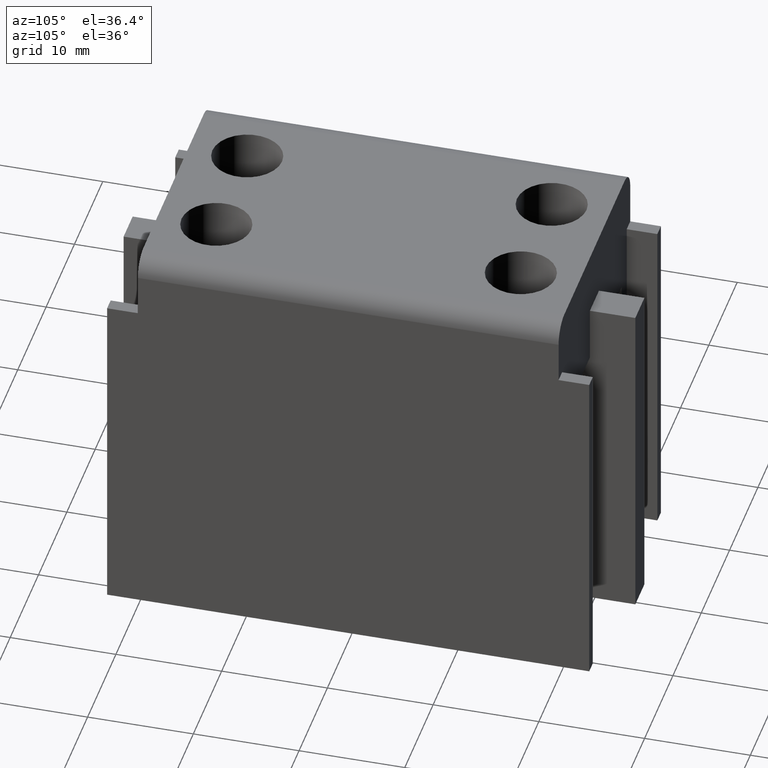
[diagram: clean part render]
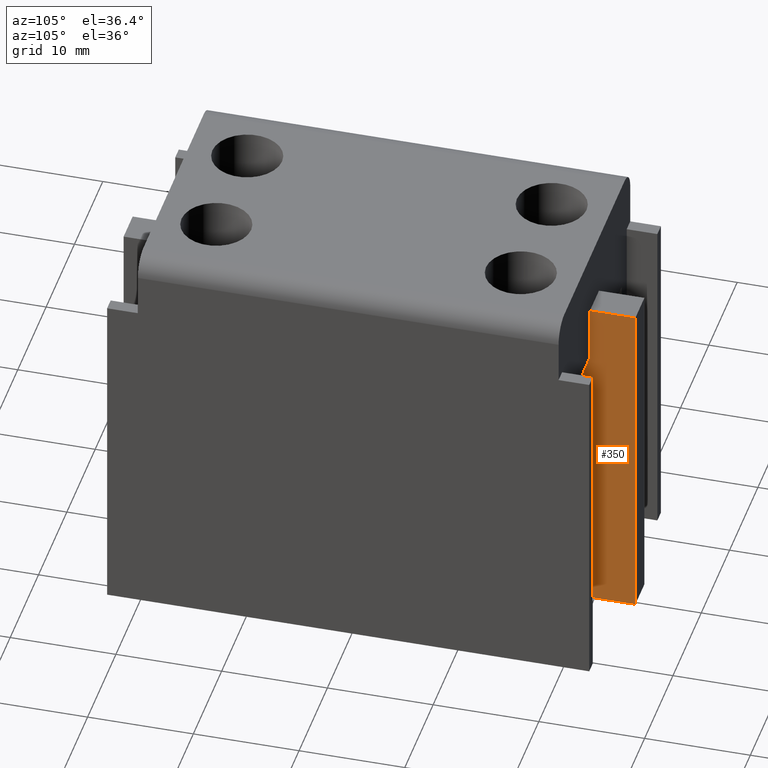
[diagram: same view with one face highlighted and labeled with its STEP entity id]
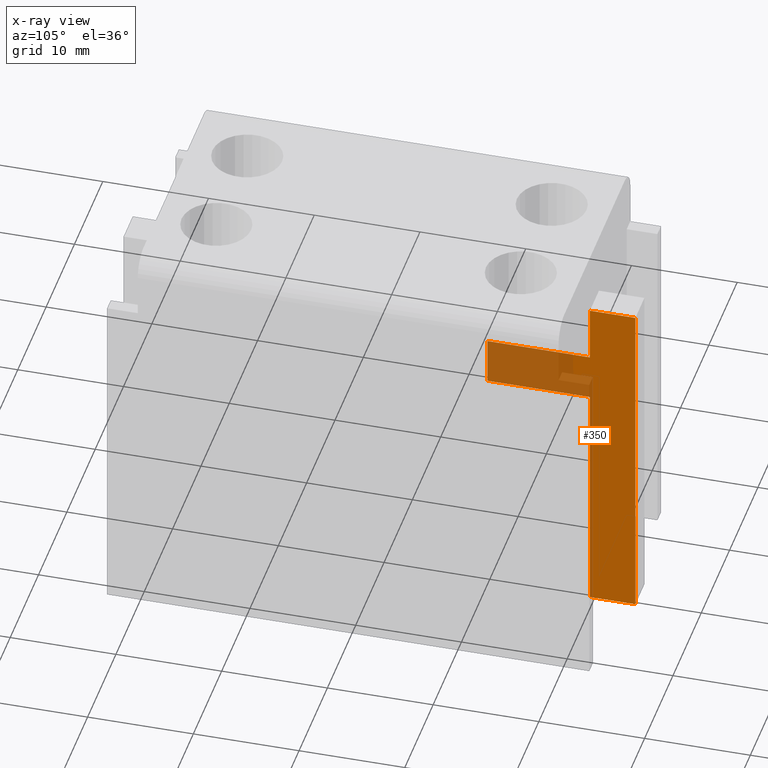
[diagram: x-ray of the same camera — body ghosted, the highlighted face saturated]
A machine part, auxiliary view. The second image highlights one B-rep face of the part: STEP entity #350.
The next image is the same camera in x-ray: the body ghosted, the highlighted face saturated — about 26% of this face is hidden behind the body in this view.
In plain terms, the highlighted planar face has unit normal (-1, -0, 0).
Its self-contained STEP definition (entity closure, byte-faithful):
#165=FACE_OUTER_BOUND('',#694,.T.);
#350=ADVANCED_FACE('',(#165),#481,.F.);
#481=PLANE('',#2760);
#694=EDGE_LOOP('',(#1183,#1184,#1185,#1186,#1187,#1188,#1189,#1190));
#1183=ORIENTED_EDGE('',*,*,#1727,.F.);
#1184=ORIENTED_EDGE('',*,*,#1940,.T.);
#1185=ORIENTED_EDGE('',*,*,#1934,.F.);
#1186=ORIENTED_EDGE('',*,*,#1926,.F.);
#1187=ORIENTED_EDGE('',*,*,#1947,.F.);
#1188=ORIENTED_EDGE('',*,*,#1948,.T.);
#1189=ORIENTED_EDGE('',*,*,#1894,.T.);
#1190=ORIENTED_EDGE('',*,*,#1923,.F.);
#1487=VERTEX_POINT('',#3562);
#1488=VERTEX_POINT('',#3564);
#1607=VERTEX_POINT('',#3906);
#1609=VERTEX_POINT('',#3909);
#1635=VERTEX_POINT('',#3971);
#1636=VERTEX_POINT('',#3973);
#1641=VERTEX_POINT('',#3987);
#1646=VERTEX_POINT('',#4014);
#1727=EDGE_CURVE('',#1487,#1488,#2077,.T.);
#1894=EDGE_CURVE('',#1609,#1607,#2214,.T.);
#1923=EDGE_CURVE('',#1488,#1607,#2231,.T.);
#1926=EDGE_CURVE('',#1635,#1636,#2234,.T.);
#1934=EDGE_CURVE('',#1636,#1641,#2242,.T.);
#1940=EDGE_CURVE('',#1487,#1641,#2248,.T.);
#1947=EDGE_CURVE('',#1646,#1635,#2255,.T.);
#1948=EDGE_CURVE('',#1646,#1609,#2256,.T.);
#2077=LINE('',#3563,#2371);
#2214=LINE('',#3908,#2508);
#2231=LINE('',#3967,#2525);
#2234=LINE('',#3972,#2528);
#2242=LINE('',#3986,#2536);
#2248=LINE('',#3997,#2542);
#2255=LINE('',#4013,#2549);
#2256=LINE('',#4015,#2550);
#2371=VECTOR('',#2861,1.);
#2508=VECTOR('',#3172,1.);
#2525=VECTOR('',#3223,1.);
#2528=VECTOR('',#3226,1.);
#2536=VECTOR('',#3236,1.);
#2542=VECTOR('',#3246,1.);
#2549=VECTOR('',#3267,1.);
#2550=VECTOR('',#3268,1.);
#2760=AXIS2_PLACEMENT_3D('',#4016,#3269,#3270);
#2861=DIRECTION('',(2.52140040112908E-016,-1.,5.52326749582304E-014));
#3172=DIRECTION('',(0.,1.,-5.52326749582304E-014));
#3223=DIRECTION('',(0.,5.84600674716756E-014,1.));
#3226=DIRECTION('',(0.,5.84600674716756E-014,1.));
#3236=DIRECTION('',(-2.52140040112908E-016,1.,-5.52326749582304E-014));
#3246=DIRECTION('',(0.,5.84600674716756E-014,1.));
#3267=DIRECTION('',(0.,1.,-5.52326749582304E-014));
#3268=DIRECTION('',(0.,-5.83166278044114E-014,-1.));
#3269=DIRECTION('',(-1.,-2.52140040112908E-016,1.47401237573116E-029));
#3270=DIRECTION('',(-2.52185425320128E-016,1.,-5.52335954751015E-014));
#3562=CARTESIAN_POINT('',(1.6,24.200000000004,75.4999999999986));
#3563=CARTESIAN_POINT('',(1.6,19.900000000004,75.4999999999989));
#3564=CARTESIAN_POINT('',(1.6,19.900000000004,75.4999999999989));
#3906=CARTESIAN_POINT('',(1.6,19.9000000000054,98.1999999999989));
#3908=CARTESIAN_POINT('',(1.6,10.2000000000054,98.1999999999994));
#3909=CARTESIAN_POINT('',(1.6,10.2000000000054,98.1999999999994));
#3967=CARTESIAN_POINT('',(1.6,19.9000000000038,72.2499999999989));
#3971=CARTESIAN_POINT('',(1.6,19.9000000000056,102.699999999999));
#3972=CARTESIAN_POINT('',(1.6,19.9000000000038,72.2499999999989));
#3973=CARTESIAN_POINT('',(1.6,19.9000000000059,107.999999999999));
#3986=CARTESIAN_POINT('',(1.6,19.9000000000059,107.999999999999));
#3987=CARTESIAN_POINT('',(1.6,24.2000000000059,107.999999999999));
#3997=CARTESIAN_POINT('',(1.6,24.2000000000038,72.2499999999987));
#4013=CARTESIAN_POINT('',(1.6,10.2000000000056,102.699999999999));
#4014=CARTESIAN_POINT('',(1.6,10.2000000000056,102.699999999999));
#4015=CARTESIAN_POINT('',(1.6,10.2000000000056,102.699999999999));
#4016=CARTESIAN_POINT('',(1.6,19.9000000000038,72.2499999999989));